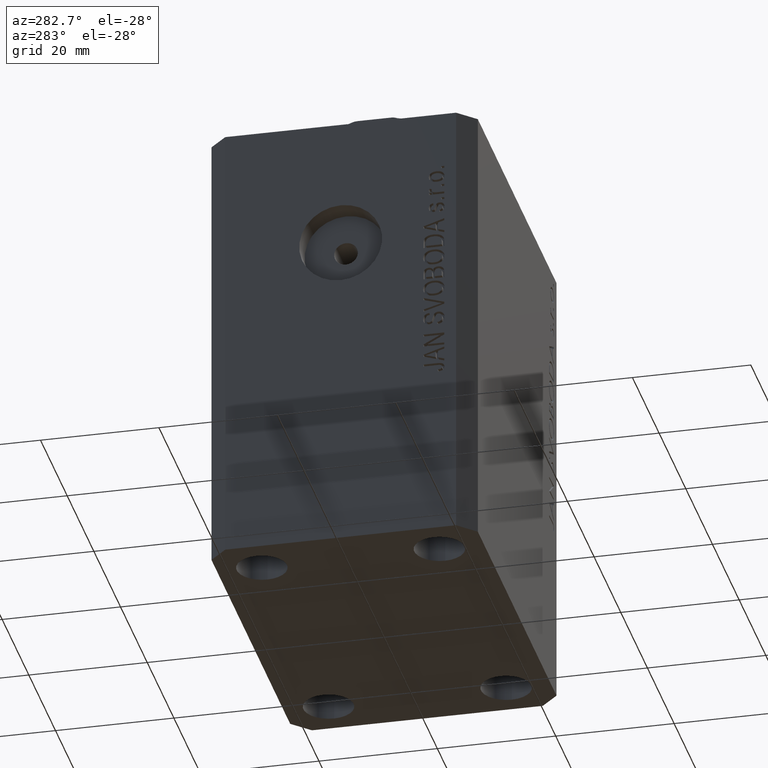
[diagram: clean part render]
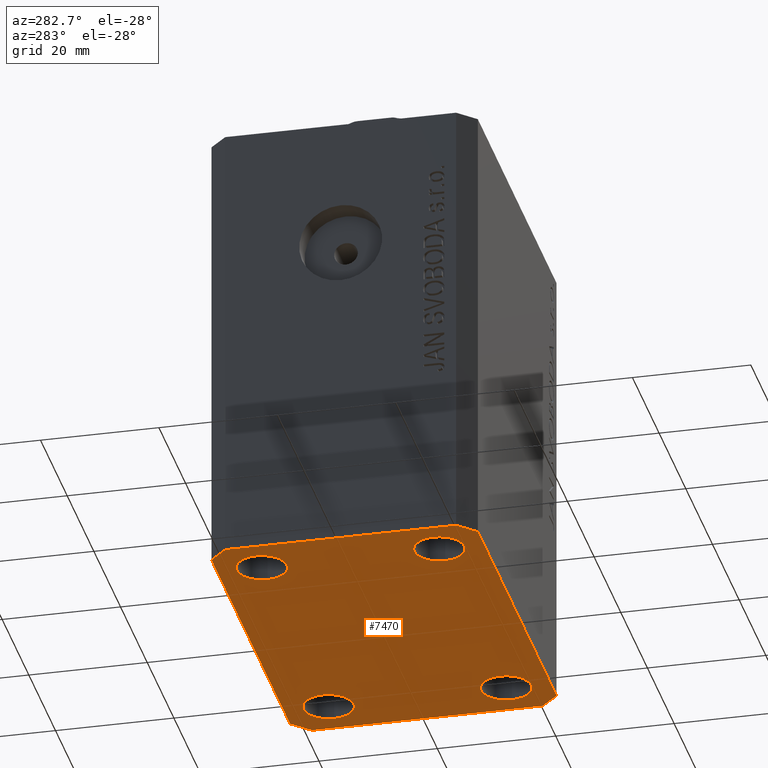
[diagram: same view with one face highlighted and labeled with its STEP entity id]
A machine part, auxiliary view. The second image highlights one B-rep face of the part: STEP entity #7470.
In plain terms, the highlighted planar face has unit normal (0, 0, 1).
Its self-contained STEP definition (entity closure, byte-faithful):
#311 = ORIENTED_EDGE ( 'NONE', *, *, #33027, .F. ) ;
#1378 = LINE ( 'NONE', #42730, #33952 ) ;
#1383 = AXIS2_PLACEMENT_3D ( 'NONE', #26867, #19912, #35931 ) ;
#2037 = DIRECTION ( 'NONE',  ( -0.7071067811865344721, 0.7071067811865606734, 0.000000000000000000 ) ) ;
#2574 = CARTESIAN_POINT ( 'NONE',  ( 25.00000000000000000, 14.99999999999999289, -77.00000000000000000 ) ) ;
#2827 = VERTEX_POINT ( 'NONE', #3476 ) ;
#3476 = CARTESIAN_POINT ( 'NONE',  ( 32.49999999999651124, -19.49999999999949196, -77.00000000000000000 ) ) ;
#3570 = EDGE_CURVE ( 'NONE', #31519, #6907, #9102, .T. ) ;
#3810 = LINE ( 'NONE', #37779, #7449 ) ;
#3831 = PLANE ( 'NONE',  #36127 ) ;
#3840 = CIRCLE ( 'NONE', #19665, 4.250000000040370374 ) ;
#4001 = DIRECTION ( 'NONE',  ( 1.000000000000000000, 0.000000000000000000, 0.000000000000000000 ) ) ;
#4103 = DIRECTION ( 'NONE',  ( -0.000000000000000000, -0.000000000000000000, -1.000000000000000000 ) ) ;
#4292 = CARTESIAN_POINT ( 'NONE',  ( 0.000000000000000000, 0.000000000000000000, -77.00000000000000000 ) ) ;
#4348 = LINE ( 'NONE', #18085, #23257 ) ;
#4675 = LINE ( 'NONE', #19312, #31176 ) ;
#4845 = ORIENTED_EDGE ( 'NONE', *, *, #14558, .F. ) ;
#5132 = VERTEX_POINT ( 'NONE', #18786 ) ;
#5979 = CARTESIAN_POINT ( 'NONE',  ( -29.49999999999650413, -22.49999999999949907, -77.00000000000000000 ) ) ;
#6099 = EDGE_LOOP ( 'NONE', ( #4845, #17537 ) ) ;
#6705 = VECTOR ( 'NONE', #36757, 1000.000000000000000 ) ;
#6846 = ORIENTED_EDGE ( 'NONE', *, *, #25719, .F. ) ;
#6859 = DIRECTION ( 'NONE',  ( -0.000000000000000000, -0.000000000000000000, -1.000000000000000000 ) ) ;
#6872 = DIRECTION ( 'NONE',  ( 1.000000000000000000, 0.000000000000000000, 0.000000000000000000 ) ) ;
#6907 = VERTEX_POINT ( 'NONE', #18797 ) ;
#7237 = LINE ( 'NONE', #10018, #10709 ) ;
#7362 = EDGE_CURVE ( 'NONE', #2827, #38007, #9062, .T. ) ;
#7449 = VECTOR ( 'NONE', #41138, 1000.000000000000114 ) ;
#7470 = ADVANCED_FACE ( 'NONE', ( #35308, #27697, #41388, #41614, #7902 ), #3831, .F. ) ;
#7902 = FACE_OUTER_BOUND ( 'NONE', #14487, .T. ) ;
#8290 = ORIENTED_EDGE ( 'NONE', *, *, #13084, .F. ) ;
#8310 = EDGE_CURVE ( 'NONE', #36743, #25481, #12723, .T. ) ;
#8380 = VERTEX_POINT ( 'NONE', #28145 ) ;
#8406 = DIRECTION ( 'NONE',  ( 1.334402673828349134E-14, 1.000000000000000000, 0.000000000000000000 ) ) ;
#8979 = CIRCLE ( 'NONE', #18298, 4.249999999976314058 ) ;
#9062 = LINE ( 'NONE', #25490, #43307 ) ;
#9102 = CIRCLE ( 'NONE', #17000, 4.250000000021375790 ) ;
#9825 = CARTESIAN_POINT ( 'NONE',  ( -25.00000000000000000, 14.99999999999999645, -77.00000000000000000 ) ) ;
#10000 = EDGE_CURVE ( 'NONE', #38007, #25468, #4348, .T. ) ;
#10018 = CARTESIAN_POINT ( 'NONE',  ( 29.49999999999707967, 22.49999999999952038, -77.00000000000000000 ) ) ;
#10607 = DIRECTION ( 'NONE',  ( 0.000000000000000000, 0.000000000000000000, 1.000000000000000000 ) ) ;
#10709 = VECTOR ( 'NONE', #34642, 1000.000000000000000 ) ;
#11937 = CARTESIAN_POINT ( 'NONE',  ( 32.49999999999702993, 19.49999999999945999, -77.00000000000000000 ) ) ;
#12200 = EDGE_CURVE ( 'NONE', #37148, #31011, #3810, .T. ) ;
#12225 = CARTESIAN_POINT ( 'NONE',  ( 29.49999999999650413, -22.49999999999949196, -77.00000000000000000 ) ) ;
#12652 = CIRCLE ( 'NONE', #38473, 4.249999999957291053 ) ;
#12658 = CARTESIAN_POINT ( 'NONE',  ( 29.49999999999707967, 22.49999999999952038, -77.00000000000000000 ) ) ;
#12723 = LINE ( 'NONE', #30012, #6705 ) ;
#13084 = EDGE_CURVE ( 'NONE', #8380, #17814, #3840, .T. ) ;
#14036 = CIRCLE ( 'NONE', #39155, 4.250000000021375790 ) ;
#14487 = EDGE_LOOP ( 'NONE', ( #44316, #33935, #40296, #311, #30542, #24304, #6846, #18485 ) ) ;
#14558 = EDGE_CURVE ( 'NONE', #5132, #28183, #8979, .T. ) ;
#15139 = DIRECTION ( 'NONE',  ( -0.000000000000000000, -0.000000000000000000, -1.000000000000000000 ) ) ;
#15752 = CIRCLE ( 'NONE', #1383, 4.250000000040370374 ) ;
#16667 = DIRECTION ( 'NONE',  ( 1.000000000000000000, 0.000000000000000000, 0.000000000000000000 ) ) ;
#16961 = DIRECTION ( 'NONE',  ( -0.000000000000000000, -0.000000000000000000, -1.000000000000000000 ) ) ;
#17000 = AXIS2_PLACEMENT_3D ( 'NONE', #40920, #23643, #16667 ) ;
#17135 = CARTESIAN_POINT ( 'NONE',  ( -20.74999999995962341, -15.00000000000000355, -77.00000000000000000 ) ) ;
#17537 = ORIENTED_EDGE ( 'NONE', *, *, #32017, .F. ) ;
#17814 = VERTEX_POINT ( 'NONE', #17135 ) ;
#18085 = CARTESIAN_POINT ( 'NONE',  ( 32.49999999999702993, 19.49999999999945999, -77.00000000000000000 ) ) ;
#18298 = AXIS2_PLACEMENT_3D ( 'NONE', #42224, #41771, #4001 ) ;
#18485 = ORIENTED_EDGE ( 'NONE', *, *, #12200, .F. ) ;
#18786 = CARTESIAN_POINT ( 'NONE',  ( 29.24999999997631051, -15.00000000000000355, -77.00000000000000000 ) ) ;
#18797 = CARTESIAN_POINT ( 'NONE',  ( -20.74999999997862687, 14.99999999999999645, -77.00000000000000000 ) ) ;
#19312 = CARTESIAN_POINT ( 'NONE',  ( -32.49999999999650413, -19.49999999999949907, -77.00000000000000000 ) ) ;
#19665 = AXIS2_PLACEMENT_3D ( 'NONE', #35352, #4103, #21889 ) ;
#19834 = EDGE_LOOP ( 'NONE', ( #29511, #8290 ) ) ;
#19855 = EDGE_CURVE ( 'NONE', #25468, #37148, #7237, .T. ) ;
#19912 = DIRECTION ( 'NONE',  ( -0.000000000000000000, -0.000000000000000000, -1.000000000000000000 ) ) ;
#20593 = DIRECTION ( 'NONE',  ( 1.000000000000000000, 0.000000000000000000, 0.000000000000000000 ) ) ;
#21889 = DIRECTION ( 'NONE',  ( 1.000000000000000000, 0.000000000000000000, 0.000000000000000000 ) ) ;
#22272 = CARTESIAN_POINT ( 'NONE',  ( -29.49999999999650413, 22.49999999999949907, -77.00000000000000000 ) ) ;
#22286 = DIRECTION ( 'NONE',  ( 0.000000000000000000, -1.000000000000000000, 0.000000000000000000 ) ) ;
#22680 = DIRECTION ( 'NONE',  ( 0.7071067811865474617, -0.7071067811865474617, 0.000000000000000000 ) ) ;
#23257 = VECTOR ( 'NONE', #2037, 1000.000000000000000 ) ;
#23341 = AXIS2_PLACEMENT_3D ( 'NONE', #42314, #15139, #31973 ) ;
#23643 = DIRECTION ( 'NONE',  ( -0.000000000000000000, -0.000000000000000000, -1.000000000000000000 ) ) ;
#23852 = LINE ( 'NONE', #27229, #40572 ) ;
#24304 = ORIENTED_EDGE ( 'NONE', *, *, #25909, .F. ) ;
#25468 = VERTEX_POINT ( 'NONE', #12658 ) ;
#25481 = VERTEX_POINT ( 'NONE', #12225 ) ;
#25490 = CARTESIAN_POINT ( 'NONE',  ( 32.49999999999651124, -19.49999999999949196, -77.00000000000000000 ) ) ;
#25719 = EDGE_CURVE ( 'NONE', #31011, #40916, #1378, .T. ) ;
#25909 = EDGE_CURVE ( 'NONE', #40916, #36743, #4675, .T. ) ;
#26228 = CARTESIAN_POINT ( 'NONE',  ( -32.49999999999650413, -19.49999999999949907, -77.00000000000000000 ) ) ;
#26867 = CARTESIAN_POINT ( 'NONE',  ( -24.99999999999999289, -15.00000000000000355, -77.00000000000000000 ) ) ;
#27229 = CARTESIAN_POINT ( 'NONE',  ( 29.49999999999650413, -22.49999999999949196, -77.00000000000000000 ) ) ;
#27335 = CARTESIAN_POINT ( 'NONE',  ( 29.24999999995729283, 14.99999999999999289, -77.00000000000000000 ) ) ;
#27697 = FACE_BOUND ( 'NONE', #6099, .T. ) ;
#27817 = EDGE_LOOP ( 'NONE', ( #31028, #43222 ) ) ;
#28145 = CARTESIAN_POINT ( 'NONE',  ( -29.25000000004036593, -15.00000000000000355, -77.00000000000000000 ) ) ;
#28183 = VERTEX_POINT ( 'NONE', #38177 ) ;
#28431 = EDGE_CURVE ( 'NONE', #6907, #31519, #14036, .T. ) ;
#28804 = EDGE_CURVE ( 'NONE', #34078, #31700, #29007, .T. ) ;
#29007 = CIRCLE ( 'NONE', #40478, 4.249999999957291053 ) ;
#29029 = CARTESIAN_POINT ( 'NONE',  ( -32.49999999999650413, 19.49999999999949907, -77.00000000000000000 ) ) ;
#29089 = EDGE_LOOP ( 'NONE', ( #34876, #39403 ) ) ;
#29511 = ORIENTED_EDGE ( 'NONE', *, *, #43467, .F. ) ;
#30012 = CARTESIAN_POINT ( 'NONE',  ( -29.49999999999650413, -22.49999999999949907, -77.00000000000000000 ) ) ;
#30210 = DIRECTION ( 'NONE',  ( 1.000000000000000000, 0.000000000000000000, 0.000000000000000000 ) ) ;
#30542 = ORIENTED_EDGE ( 'NONE', *, *, #8310, .F. ) ;
#31011 = VERTEX_POINT ( 'NONE', #29029 ) ;
#31028 = ORIENTED_EDGE ( 'NONE', *, *, #28431, .F. ) ;
#31176 = VECTOR ( 'NONE', #22680, 1000.000000000000114 ) ;
#31519 = VERTEX_POINT ( 'NONE', #32510 ) ;
#31700 = VERTEX_POINT ( 'NONE', #27335 ) ;
#31973 = DIRECTION ( 'NONE',  ( 1.000000000000000000, 0.000000000000000000, 0.000000000000000000 ) ) ;
#32017 = EDGE_CURVE ( 'NONE', #28183, #5132, #38407, .T. ) ;
#32510 = CARTESIAN_POINT ( 'NONE',  ( -29.25000000002137668, 14.99999999999999645, -77.00000000000000000 ) ) ;
#33027 = EDGE_CURVE ( 'NONE', #25481, #2827, #23852, .T. ) ;
#33935 = ORIENTED_EDGE ( 'NONE', *, *, #10000, .F. ) ;
#33952 = VECTOR ( 'NONE', #22286, 1000.000000000000000 ) ;
#34078 = VERTEX_POINT ( 'NONE', #38216 ) ;
#34583 = EDGE_CURVE ( 'NONE', #31700, #34078, #12652, .T. ) ;
#34642 = DIRECTION ( 'NONE',  ( -1.000000000000000000, -3.528251137580330676E-16, 0.000000000000000000 ) ) ;
#34856 = DIRECTION ( 'NONE',  ( 1.000000000000000000, 0.000000000000000000, -0.000000000000000000 ) ) ;
#34876 = ORIENTED_EDGE ( 'NONE', *, *, #34583, .F. ) ;
#35308 = FACE_BOUND ( 'NONE', #19834, .T. ) ;
#35352 = CARTESIAN_POINT ( 'NONE',  ( -24.99999999999999289, -15.00000000000000355, -77.00000000000000000 ) ) ;
#35931 = DIRECTION ( 'NONE',  ( 1.000000000000000000, 0.000000000000000000, 0.000000000000000000 ) ) ;
#36127 = AXIS2_PLACEMENT_3D ( 'NONE', #4292, #10607, #34856 ) ;
#36743 = VERTEX_POINT ( 'NONE', #5979 ) ;
#36757 = DIRECTION ( 'NONE',  ( 1.000000000000000000, 1.176083712526788232E-16, 0.000000000000000000 ) ) ;
#37148 = VERTEX_POINT ( 'NONE', #22272 ) ;
#37676 = DIRECTION ( 'NONE',  ( -0.000000000000000000, -0.000000000000000000, -1.000000000000000000 ) ) ;
#37779 = CARTESIAN_POINT ( 'NONE',  ( -29.49999999999650413, 22.49999999999949907, -77.00000000000000000 ) ) ;
#38007 = VERTEX_POINT ( 'NONE', #11937 ) ;
#38177 = CARTESIAN_POINT ( 'NONE',  ( 20.75000000002367884, -15.00000000000000355, -77.00000000000000000 ) ) ;
#38216 = CARTESIAN_POINT ( 'NONE',  ( 20.75000000004271072, 14.99999999999999289, -77.00000000000000000 ) ) ;
#38407 = CIRCLE ( 'NONE', #23341, 4.249999999976314058 ) ;
#38473 = AXIS2_PLACEMENT_3D ( 'NONE', #41248, #6859, #20593 ) ;
#38657 = DIRECTION ( 'NONE',  ( 0.7071067811865483499, 0.7071067811865466846, 0.000000000000000000 ) ) ;
#39155 = AXIS2_PLACEMENT_3D ( 'NONE', #9825, #37676, #6872 ) ;
#39403 = ORIENTED_EDGE ( 'NONE', *, *, #28804, .F. ) ;
#40296 = ORIENTED_EDGE ( 'NONE', *, *, #7362, .F. ) ;
#40478 = AXIS2_PLACEMENT_3D ( 'NONE', #2574, #16961, #30210 ) ;
#40572 = VECTOR ( 'NONE', #38657, 1000.000000000000000 ) ;
#40916 = VERTEX_POINT ( 'NONE', #26228 ) ;
#40920 = CARTESIAN_POINT ( 'NONE',  ( -25.00000000000000000, 14.99999999999999645, -77.00000000000000000 ) ) ;
#41138 = DIRECTION ( 'NONE',  ( -0.7071067811865474617, -0.7071067811865474617, 0.000000000000000000 ) ) ;
#41248 = CARTESIAN_POINT ( 'NONE',  ( 25.00000000000000000, 14.99999999999999289, -77.00000000000000000 ) ) ;
#41388 = FACE_BOUND ( 'NONE', #29089, .T. ) ;
#41614 = FACE_BOUND ( 'NONE', #27817, .T. ) ;
#41771 = DIRECTION ( 'NONE',  ( -0.000000000000000000, -0.000000000000000000, -1.000000000000000000 ) ) ;
#42224 = CARTESIAN_POINT ( 'NONE',  ( 24.99999999999999289, -15.00000000000000355, -77.00000000000000000 ) ) ;
#42314 = CARTESIAN_POINT ( 'NONE',  ( 24.99999999999999289, -15.00000000000000355, -77.00000000000000000 ) ) ;
#42730 = CARTESIAN_POINT ( 'NONE',  ( -32.49999999999650413, 19.49999999999949907, -77.00000000000000000 ) ) ;
#43222 = ORIENTED_EDGE ( 'NONE', *, *, #3570, .F. ) ;
#43307 = VECTOR ( 'NONE', #8406, 1000.000000000000000 ) ;
#43467 = EDGE_CURVE ( 'NONE', #17814, #8380, #15752, .T. ) ;
#44316 = ORIENTED_EDGE ( 'NONE', *, *, #19855, .F. ) ;